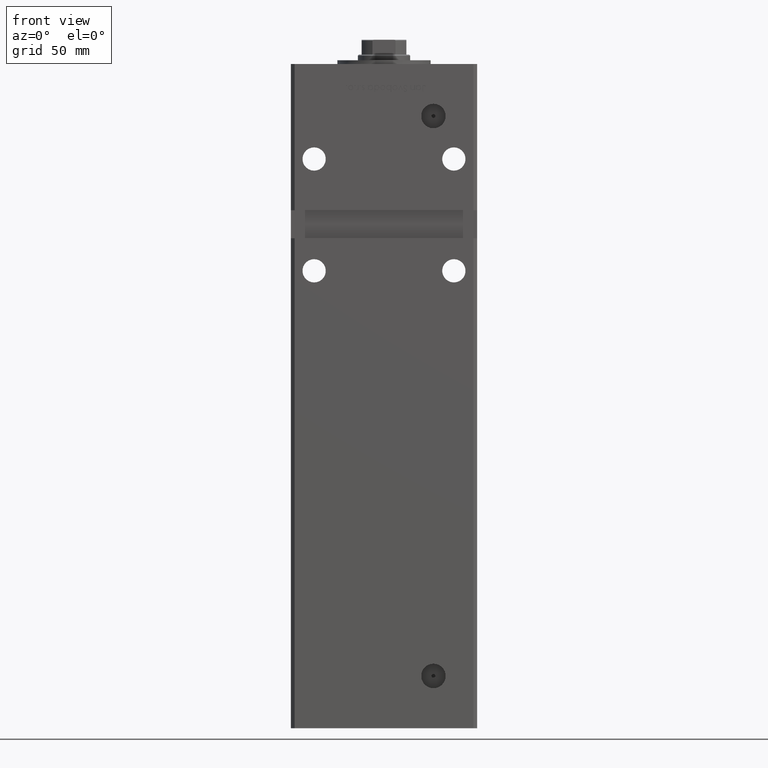
[diagram: clean part render]
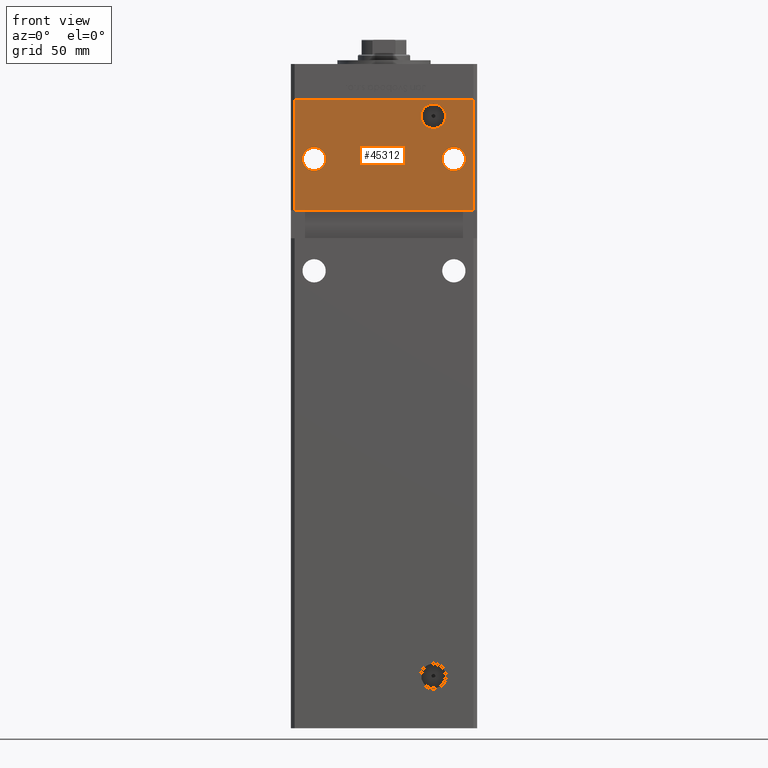
[diagram: same view with one face highlighted and labeled with its STEP entity id]
A machine part, front view. The second image highlights one B-rep face of the part: STEP entity #45312.
In plain terms, the highlighted planar face has unit normal (0, 1, 0).
Its self-contained STEP definition (entity closure, byte-faithful):
#569 = CARTESIAN_POINT ( 'NONE',  ( 26.49999999999995737, -43.50000000000000000, 309.5000000000000000 ) ) ;
#773 = CARTESIAN_POINT ( 'NONE',  ( -37.50000000000000000, -43.50000000000000000, 280.2500000000000000 ) ) ;
#2237 = EDGE_LOOP ( 'NONE', ( #50471, #52201 ) ) ;
#2673 = AXIS2_PLACEMENT_3D ( 'NONE', #44400, #19671, #15627 ) ;
#2853 = AXIS2_PLACEMENT_3D ( 'NONE', #569, #29941, #46307 ) ;
#3044 = VECTOR ( 'NONE', #15274, 1000.000000000000000 ) ;
#3288 = FACE_BOUND ( 'NONE', #42011, .T. ) ;
#3554 = FACE_OUTER_BOUND ( 'NONE', #43395, .T. ) ;
#3701 = EDGE_CURVE ( 'NONE', #38110, #17021, #25915, .T. ) ;
#4400 = DIRECTION ( 'NONE',  ( 0.000000000000000000, 0.000000000000000000, 1.000000000000000000 ) ) ;
#5159 = ORIENTED_EDGE ( 'NONE', *, *, #30983, .F. ) ;
#6254 = AXIS2_PLACEMENT_3D ( 'NONE', #43595, #35014, #51395 ) ;
#7287 = DIRECTION ( 'NONE',  ( 1.000000000000000000, 0.000000000000000000, 0.000000000000000000 ) ) ;
#7297 = AXIS2_PLACEMENT_3D ( 'NONE', #48224, #16226, #27306 ) ;
#7584 = EDGE_CURVE ( 'NONE', #33216, #13303, #28583, .T. ) ;
#8150 = EDGE_CURVE ( 'NONE', #13303, #33216, #32911, .T. ) ;
#8454 = ORIENTED_EDGE ( 'NONE', *, *, #3701, .T. ) ;
#8887 = LINE ( 'NONE', #41711, #34525 ) ;
#9304 = EDGE_CURVE ( 'NONE', #14253, #35228, #37218, .T. ) ;
#9750 = EDGE_CURVE ( 'NONE', #35228, #14253, #45836, .T. ) ;
#9980 = VECTOR ( 'NONE', #48820, 1000.000000000000000 ) ;
#11039 = CARTESIAN_POINT ( 'NONE',  ( 37.50000000000000000, -43.50000000000000000, 292.7499999999999432 ) ) ;
#11725 = CARTESIAN_POINT ( 'NONE',  ( -47.99999999999998579, -43.50000000000000000, 318.5000000000000000 ) ) ;
#11926 = FACE_BOUND ( 'NONE', #2237, .T. ) ;
#12279 = AXIS2_PLACEMENT_3D ( 'NONE', #17538, #25892, #37715 ) ;
#13303 = VERTEX_POINT ( 'NONE', #19306 ) ;
#14253 = VERTEX_POINT ( 'NONE', #34125 ) ;
#15274 = DIRECTION ( 'NONE',  ( -1.000000000000000000, -0.000000000000000000, -0.000000000000000000 ) ) ;
#15378 = EDGE_CURVE ( 'NONE', #34203, #38932, #52102, .T. ) ;
#15410 = CARTESIAN_POINT ( 'NONE',  ( 47.99999999999998579, -43.50000000000000000, 318.5000000000000000 ) ) ;
#15604 = CARTESIAN_POINT ( 'NONE',  ( -47.99999999999998579, -43.50000000000000000, 259.0000000000000000 ) ) ;
#15627 = DIRECTION ( 'NONE',  ( 0.000000000000000000, 0.000000000000000000, 1.000000000000000000 ) ) ;
#15703 = CARTESIAN_POINT ( 'NONE',  ( 26.49999999999995737, -43.50000000000000000, 316.0800000000000409 ) ) ;
#16226 = DIRECTION ( 'NONE',  ( 0.000000000000000000, 1.000000000000000000, 0.000000000000000000 ) ) ;
#16988 = EDGE_CURVE ( 'NONE', #17021, #38110, #49348, .T. ) ;
#17021 = VERTEX_POINT ( 'NONE', #24887 ) ;
#17075 = DIRECTION ( 'NONE',  ( 0.000000000000000000, 1.000000000000000000, 0.000000000000000000 ) ) ;
#17390 = ORIENTED_EDGE ( 'NONE', *, *, #8150, .T. ) ;
#17538 = CARTESIAN_POINT ( 'NONE',  ( 37.50000000000000000, -43.50000000000000000, 286.5000000000000000 ) ) ;
#19306 = CARTESIAN_POINT ( 'NONE',  ( 37.50000000000000000, -43.50000000000000000, 280.2500000000000000 ) ) ;
#19671 = DIRECTION ( 'NONE',  ( 0.000000000000000000, 1.000000000000000000, 0.000000000000000000 ) ) ;
#20482 = CARTESIAN_POINT ( 'NONE',  ( -47.99999999999998579, -43.50000000000000000, 318.5000000000000000 ) ) ;
#21114 = CARTESIAN_POINT ( 'NONE',  ( -37.50000000000000000, -43.50000000000000000, 286.5000000000000000 ) ) ;
#23770 = PLANE ( 'NONE',  #7297 ) ;
#24887 = CARTESIAN_POINT ( 'NONE',  ( -37.50000000000000000, -43.50000000000000000, 292.7499999999999432 ) ) ;
#25892 = DIRECTION ( 'NONE',  ( 0.000000000000000000, 1.000000000000000000, 0.000000000000000000 ) ) ;
#25915 = CIRCLE ( 'NONE', #2673, 6.249999999999977796 ) ;
#27306 = DIRECTION ( 'NONE',  ( 0.000000000000000000, -0.000000000000000000, 1.000000000000000000 ) ) ;
#28583 = CIRCLE ( 'NONE', #6254, 6.249999999999977796 ) ;
#28646 = ORIENTED_EDGE ( 'NONE', *, *, #16988, .T. ) ;
#28929 = DIRECTION ( 'NONE',  ( 0.000000000000000000, 0.000000000000000000, -1.000000000000000000 ) ) ;
#29069 = ORIENTED_EDGE ( 'NONE', *, *, #15378, .F. ) ;
#29941 = DIRECTION ( 'NONE',  ( -0.000000000000000000, 1.000000000000000000, -0.000000000000000000 ) ) ;
#30213 = EDGE_LOOP ( 'NONE', ( #28646, #8454 ) ) ;
#30983 = EDGE_CURVE ( 'NONE', #44155, #34203, #8887, .T. ) ;
#32424 = CARTESIAN_POINT ( 'NONE',  ( 26.49999999999995737, -43.50000000000000000, 309.5000000000000000 ) ) ;
#32486 = CARTESIAN_POINT ( 'NONE',  ( -49.99999999999998579, -43.50000000000000000, 259.0000000000000000 ) ) ;
#32911 = CIRCLE ( 'NONE', #12279, 6.249999999999977796 ) ;
#33216 = VERTEX_POINT ( 'NONE', #11039 ) ;
#34125 = CARTESIAN_POINT ( 'NONE',  ( 26.49999999999995737, -43.50000000000000000, 302.9199999999999591 ) ) ;
#34203 = VERTEX_POINT ( 'NONE', #47002 ) ;
#34525 = VECTOR ( 'NONE', #41438, 1000.000000000000000 ) ;
#34649 = AXIS2_PLACEMENT_3D ( 'NONE', #32424, #36448, #28929 ) ;
#35014 = DIRECTION ( 'NONE',  ( 0.000000000000000000, 1.000000000000000000, 0.000000000000000000 ) ) ;
#35228 = VERTEX_POINT ( 'NONE', #15703 ) ;
#35330 = EDGE_CURVE ( 'NONE', #35500, #44155, #52733, .T. ) ;
#35500 = VERTEX_POINT ( 'NONE', #39023 ) ;
#36409 = FACE_BOUND ( 'NONE', #30213, .T. ) ;
#36448 = DIRECTION ( 'NONE',  ( -0.000000000000000000, 1.000000000000000000, -0.000000000000000000 ) ) ;
#37218 = CIRCLE ( 'NONE', #34649, 6.580000000000030269 ) ;
#37387 = ORIENTED_EDGE ( 'NONE', *, *, #7584, .T. ) ;
#37715 = DIRECTION ( 'NONE',  ( 0.000000000000000000, 0.000000000000000000, 1.000000000000000000 ) ) ;
#38110 = VERTEX_POINT ( 'NONE', #773 ) ;
#38136 = VECTOR ( 'NONE', #7287, 1000.000000000000000 ) ;
#38932 = VERTEX_POINT ( 'NONE', #15604 ) ;
#39023 = CARTESIAN_POINT ( 'NONE',  ( -47.99999999999998579, -43.50000000000000000, 318.5000000000000000 ) ) ;
#39965 = LINE ( 'NONE', #11725, #9980 ) ;
#41438 = DIRECTION ( 'NONE',  ( -0.000000000000000000, -0.000000000000000000, -1.000000000000000000 ) ) ;
#41711 = CARTESIAN_POINT ( 'NONE',  ( 47.99999999999998579, -43.50000000000000000, 318.5000000000000000 ) ) ;
#42011 = EDGE_LOOP ( 'NONE', ( #37387, #17390 ) ) ;
#42503 = AXIS2_PLACEMENT_3D ( 'NONE', #21114, #17075, #4400 ) ;
#42874 = ORIENTED_EDGE ( 'NONE', *, *, #45872, .T. ) ;
#43395 = EDGE_LOOP ( 'NONE', ( #42874, #29069, #5159, #52765 ) ) ;
#43595 = CARTESIAN_POINT ( 'NONE',  ( 37.50000000000000000, -43.50000000000000000, 286.5000000000000000 ) ) ;
#44155 = VERTEX_POINT ( 'NONE', #15410 ) ;
#44400 = CARTESIAN_POINT ( 'NONE',  ( -37.50000000000000000, -43.50000000000000000, 286.5000000000000000 ) ) ;
#45312 = ADVANCED_FACE ( 'NONE', ( #3288, #36409, #3554, #11926 ), #23770, .F. ) ;
#45836 = CIRCLE ( 'NONE', #2853, 6.580000000000030269 ) ;
#45872 = EDGE_CURVE ( 'NONE', #35500, #38932, #39965, .T. ) ;
#46307 = DIRECTION ( 'NONE',  ( 0.000000000000000000, 0.000000000000000000, -1.000000000000000000 ) ) ;
#47002 = CARTESIAN_POINT ( 'NONE',  ( 47.99999999999998579, -43.50000000000000000, 259.0000000000000000 ) ) ;
#48224 = CARTESIAN_POINT ( 'NONE',  ( -47.99999999999998579, -43.50000000000000000, 318.5000000000000000 ) ) ;
#48820 = DIRECTION ( 'NONE',  ( -0.000000000000000000, -0.000000000000000000, -1.000000000000000000 ) ) ;
#49348 = CIRCLE ( 'NONE', #42503, 6.249999999999977796 ) ;
#50471 = ORIENTED_EDGE ( 'NONE', *, *, #9304, .T. ) ;
#51395 = DIRECTION ( 'NONE',  ( 0.000000000000000000, 0.000000000000000000, 1.000000000000000000 ) ) ;
#52102 = LINE ( 'NONE', #32486, #3044 ) ;
#52201 = ORIENTED_EDGE ( 'NONE', *, *, #9750, .T. ) ;
#52733 = LINE ( 'NONE', #20482, #38136 ) ;
#52765 = ORIENTED_EDGE ( 'NONE', *, *, #35330, .F. ) ;